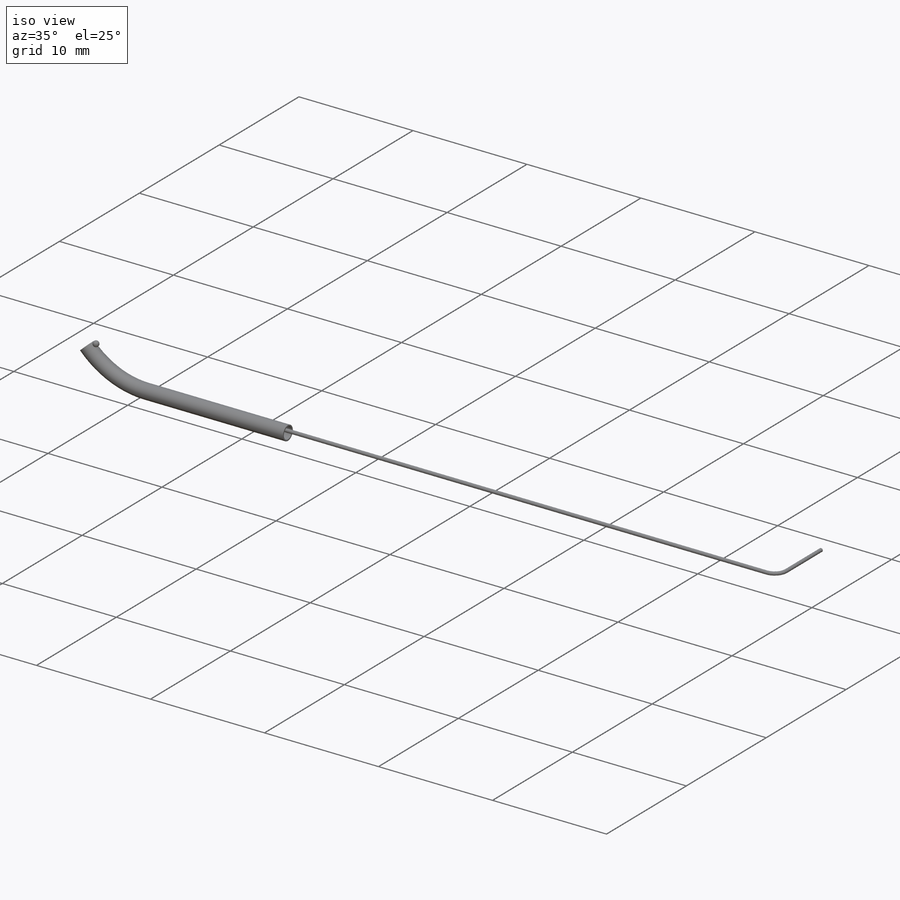
[diagram: iso view]
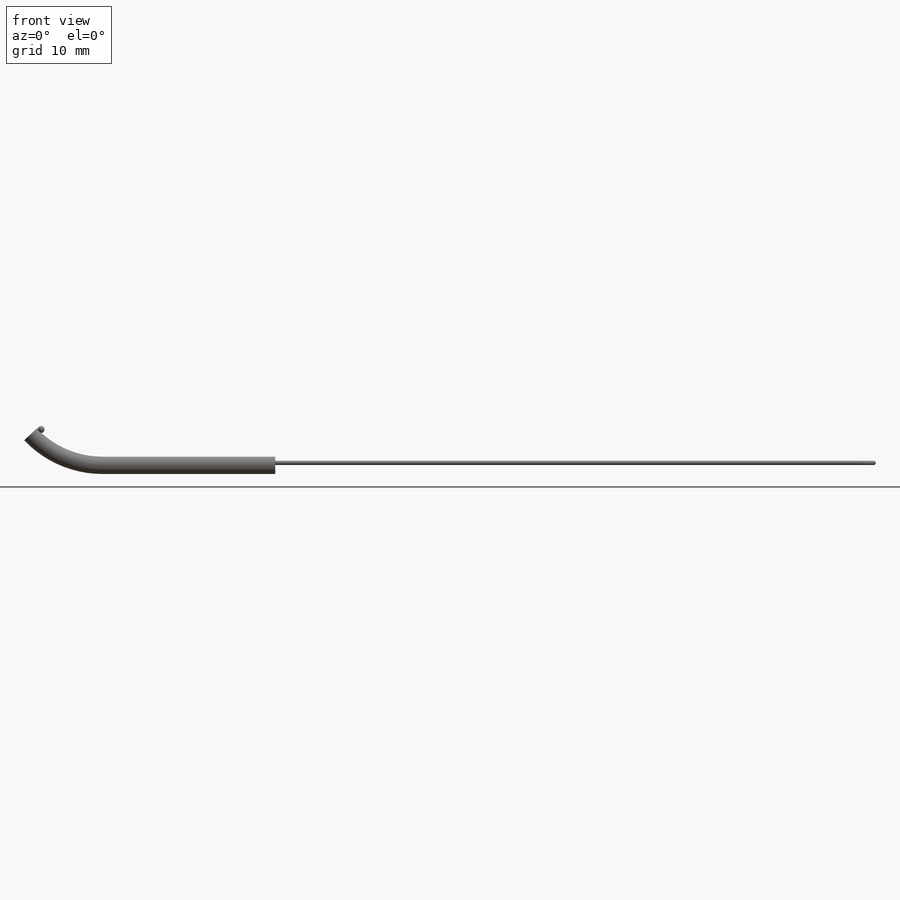
[diagram: front view]
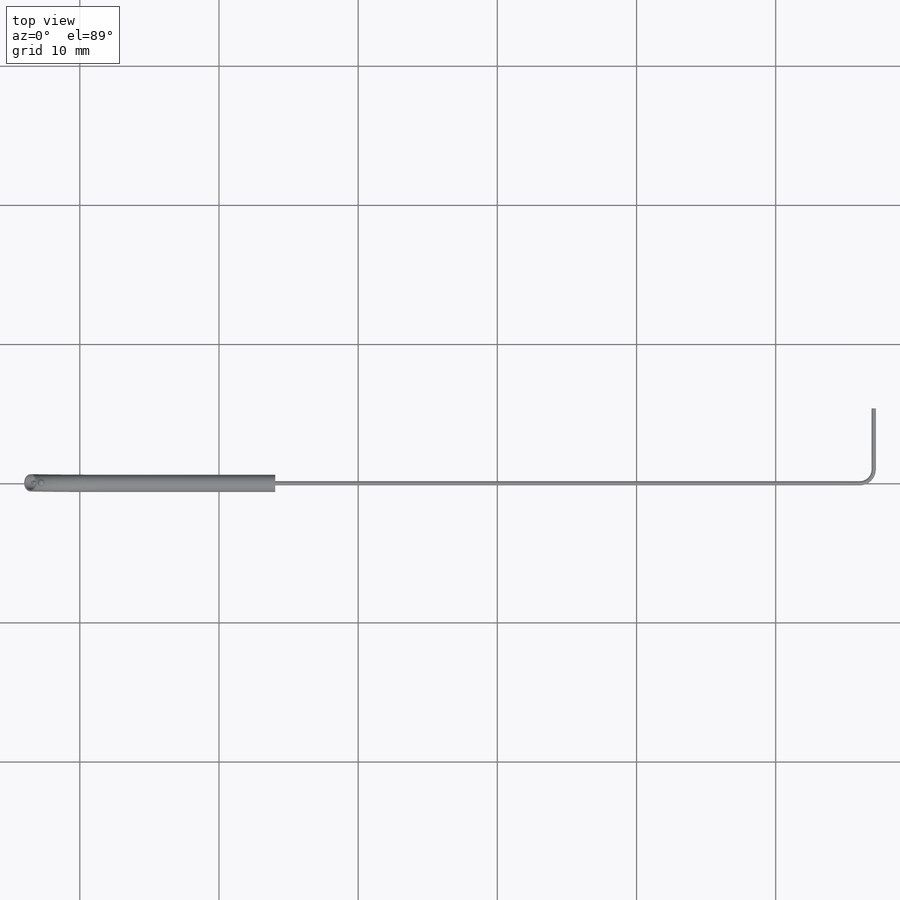
[diagram: top view]
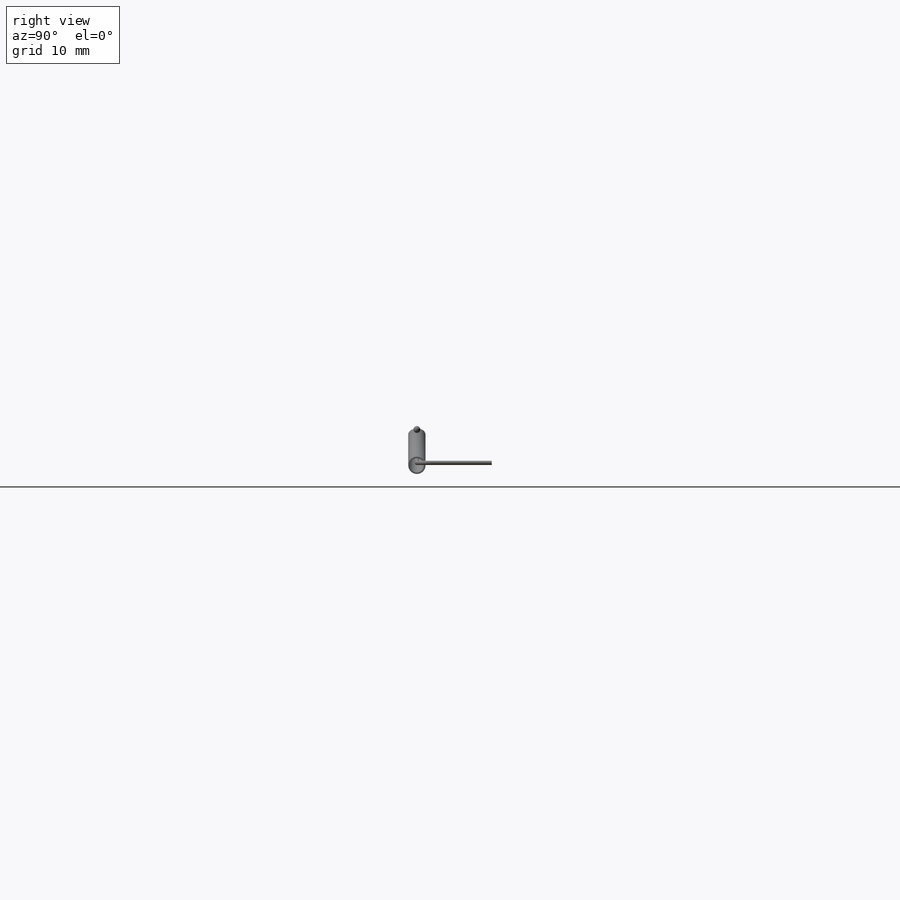
[diagram: right view]
SOLIDWORKS PART (.sldprt)
format: sldprt  version: not decoded by parser v0  size: 1,341,952 bytes
history: native  units: mm
features: sketch x11, extrude x3, sweep x3, plane x2, material x1, revolve x1 (+14 scaffold rows collapsed; 1 parser-record rows omitted)
feature tree (36):
  scaffold x14  (default folders/planes/origin — collapsed)
  material  "Material <not specified>"
  sketch  "Sketch4"  dims[c1.D1=~92.683214mm c1.D2=~92.683214mm c2.D1=~5.889916mm]
  sketch  "Sketch1"  dims[D1=1.22mm D2=0.22mm]
  extrude  "Boss-Extrude1"  Depth=10mm
  plane  "Plane1"
  sketch  "Sketch5"  dims[D1=1.2446mm D2=0.22mm]
  sweep  "Sweep2"
  extrude  "Boss-Extrude2"  [1 undecoded]
  sketch  "Sketch5<2>"  dims[D1=10.0mm]
  sketch  "Sketch6"  dims[D1=0.5mm D2=0.5mm]
  revolve  "Revolve2"  Angle=360deg
  sketch  "Sketch7"  dims[D1=0.8mm]
  sketch  "Sketch8"  dims[D1=0.3mm]
  sweep  "Sweep3"
  sketch  "Sketch9"
  extrude  "Boss-Extrude3"  Depth=40mm
  parser-record x1  (decoder bookkeeping rows leaked as tree rows — omitted from the tree; the rows remain in map.json)
  sketch  "Sketch12"  dims[D1=~0.922555mm]
  plane  "Plane2"
  sketch  "Sketch11"
  sketch  "Sketch10"  dims[c1.D1=~9.654044mm c1.D2=1.0mm c2.D1=3.0mm]
  sweep  "Sweep4"
decode coverage: 12 of 18 modeling features carry decoded parameters
note: ~ marks probable driven/reference dimensions
note: 1 parameter value undecoded
note: suppression state not decoded; provenance and decode notes live in map.json
